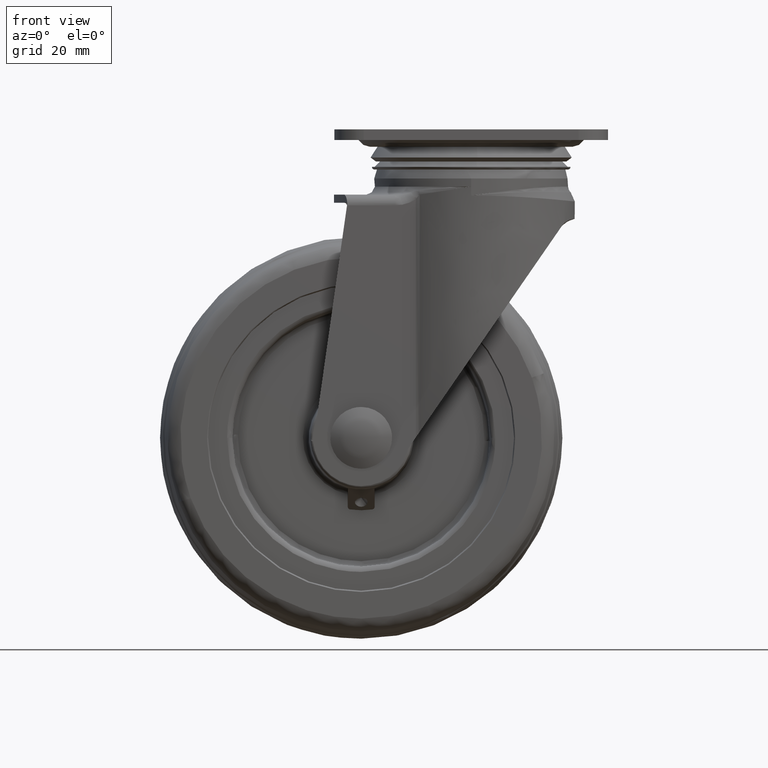
[diagram: clean part render]
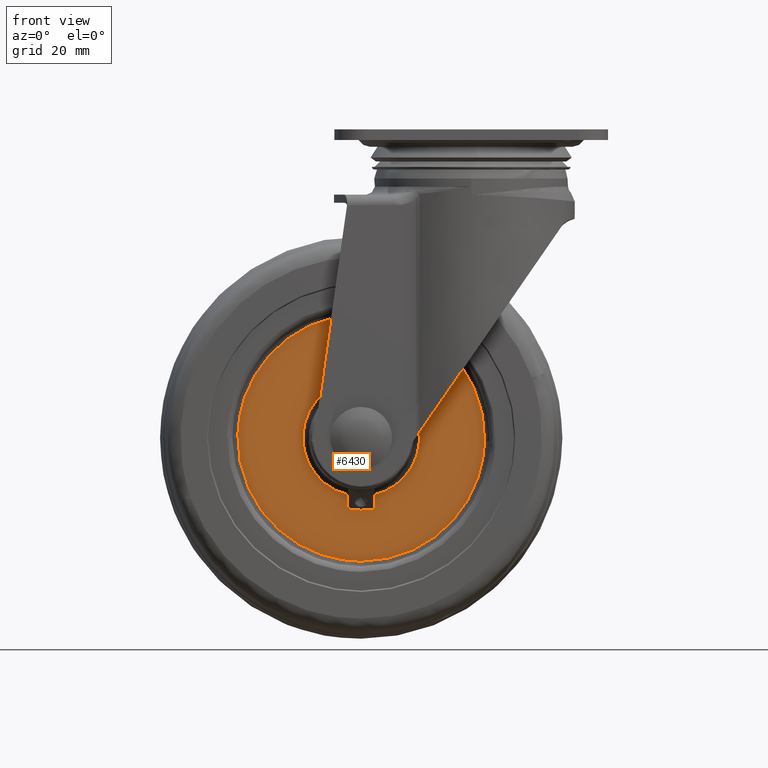
[diagram: same view with one face highlighted and labeled with its STEP entity id]
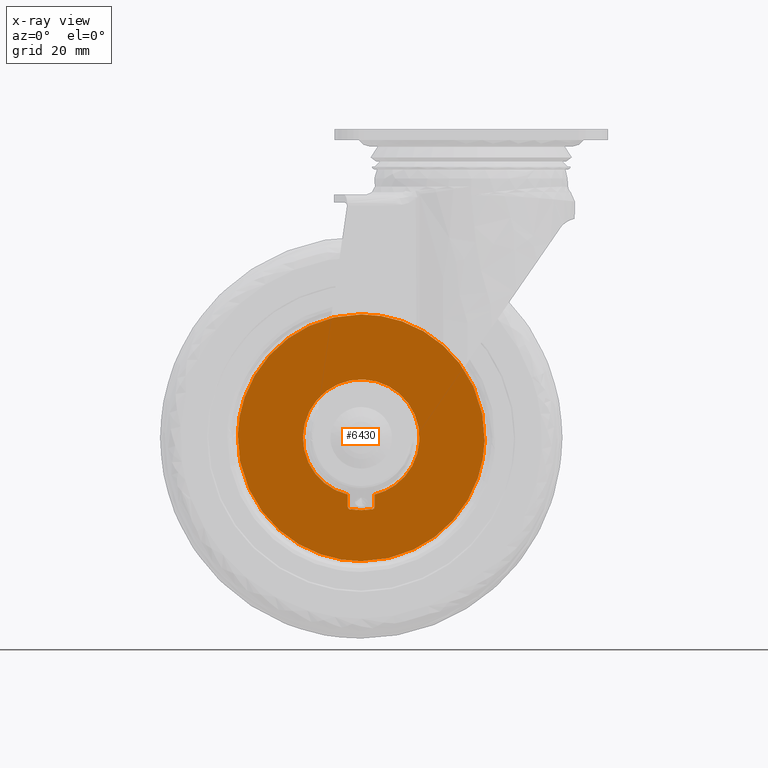
[diagram: x-ray of the same camera — body ghosted, the highlighted face saturated]
A machine part, front view. The second image highlights one B-rep face of the part: STEP entity #6430.
The next image is the same camera in x-ray: the body ghosted, the highlighted face saturated — about 0% of this face is hidden behind the body in this view.
In plain terms, the highlighted face is a freeform B-spline surface patch.
Its self-contained STEP definition (entity closure, byte-faithful):
#5749=CARTESIAN_POINT('',(-86.985488706123704,-12.000000000000240,-113.843999207369390));
#5750=VERTEX_POINT('',#5749);
#5764=CARTESIAN_POINT('',(-41.0,-12.000000000000240,-68.999968000000109));
#5765=VERTEX_POINT('',#5764);
#5766=CARTESIAN_POINT('',(-41.0,-12.000000000000240,-68.999968000000109));
#5767=CARTESIAN_POINT('',(-85.858197909178870,-12.000000000000238,-68.999967999947998));
#5768=CARTESIAN_POINT('',(-86.985488706123704,-12.000000000000243,-113.843999207369480));
#5776=(BOUNDED_CURVE()B_SPLINE_CURVE(2,(#5766,#5767,#5768),.UNSPECIFIED.,.F.,.U.)B_SPLINE_CURVE_WITH_KNOTS((3,3),(0.500000000000000,0.745579891769612),.UNSPECIFIED.)CURVE()GEOMETRIC_REPRESENTATION_ITEM()RATIONAL_B_SPLINE_CURVE((1.0,0.712285260094956,0.989826157681135))REPRESENTATION_ITEM(''));
#5777=EDGE_CURVE('',#5765,#5750,#5776,.T.);
#5779=CARTESIAN_POINT('',(4.985488706123714,-12.000000000000240,-116.155968792630600));
#5780=VERTEX_POINT('',#5779);
#5781=CARTESIAN_POINT('',(4.985488706123714,-12.000000000000240,-116.155968792630520));
#5782=CARTESIAN_POINT('',(5.000016004120768,-12.000000000000238,-115.578067678877250));
#5783=CARTESIAN_POINT('',(5.000016004094715,-12.000000000000240,-114.999984000102900));
#5784=CARTESIAN_POINT('',(5.000016002021577,-12.000000000000243,-68.999968000050927));
#5785=CARTESIAN_POINT('',(-41.0,-12.000000000000240,-68.999968000000109));
#5793=(BOUNDED_CURVE()B_SPLINE_CURVE(2,(#5781,#5782,#5783,#5784,#5785),.UNSPECIFIED.,.F.,.U.)B_SPLINE_CURVE_WITH_KNOTS((3,2,3),(0.245579891769612,0.250000000000000,0.500000000000000),.UNSPECIFIED.)CURVE()GEOMETRIC_REPRESENTATION_ITEM()RATIONAL_B_SPLINE_CURVE((0.989826157681135,0.994821521091592,1.0,0.707106781186547,1.0))REPRESENTATION_ITEM(''));
#5794=EDGE_CURVE('',#5780,#5765,#5793,.T.);
#5844=CARTESIAN_POINT('',(-41.0,-12.000000000000240,-160.999999999999890));
#5845=VERTEX_POINT('',#5844);
#5846=CARTESIAN_POINT('',(-41.0,-12.000000000000240,-160.999999999999890));
#5847=CARTESIAN_POINT('',(3.858197909178883,-12.000000000000245,-161.000000000052010));
#5848=CARTESIAN_POINT('',(4.985488706123714,-12.000000000000240,-116.155968792630520));
#5856=(BOUNDED_CURVE()B_SPLINE_CURVE(2,(#5846,#5847,#5848),.UNSPECIFIED.,.F.,.U.)B_SPLINE_CURVE_WITH_KNOTS((3,3),(0.0,0.245579891769612),.UNSPECIFIED.)CURVE()GEOMETRIC_REPRESENTATION_ITEM()RATIONAL_B_SPLINE_CURVE((1.0,0.712285260094956,0.989826157681135))REPRESENTATION_ITEM(''));
#5857=EDGE_CURVE('',#5845,#5780,#5856,.T.);
#5859=CARTESIAN_POINT('',(-86.985488706123704,-12.000000000000243,-113.843999207369480));
#5860=CARTESIAN_POINT('',(-87.000016004120766,-12.000000000000240,-114.421900321122720));
#5861=CARTESIAN_POINT('',(-87.000016004094704,-12.000000000000240,-114.999983999897000));
#5862=CARTESIAN_POINT('',(-87.000016002021582,-12.000000000000242,-160.999999999949010));
#5863=CARTESIAN_POINT('',(-41.0,-12.000000000000240,-160.999999999999890));
#5871=(BOUNDED_CURVE()B_SPLINE_CURVE(2,(#5859,#5860,#5861,#5862,#5863),.UNSPECIFIED.,.F.,.U.)B_SPLINE_CURVE_WITH_KNOTS((3,2,3),(0.745579891769612,0.750000000000000,1.0),.UNSPECIFIED.)CURVE()GEOMETRIC_REPRESENTATION_ITEM()RATIONAL_B_SPLINE_CURVE((0.989826157681135,0.994821521091592,1.0,0.707106781186547,1.0))REPRESENTATION_ITEM(''));
#5872=EDGE_CURVE('',#5750,#5845,#5871,.T.);
#6106=CARTESIAN_POINT('',(-36.0,-12.000000000000240,-136.154629780269400));
#6107=VERTEX_POINT('',#6106);
#6137=CARTESIAN_POINT('',(-46.0,-12.000000000000240,-136.154629780269400));
#6138=VERTEX_POINT('',#6137);
#6139=CARTESIAN_POINT('',(-46.0,-12.000000000000240,-136.154629780269400));
#6140=CARTESIAN_POINT('',(-47.202125760973701,-12.000000000000250,-135.870601341032990));
#6141=CARTESIAN_POINT('',(-49.479248647497208,-12.000000000000240,-135.122580236216610));
#6142=CARTESIAN_POINT('',(-52.187417075335482,-12.000000000000259,-133.705331124205090));
#6143=CARTESIAN_POINT('',(-54.624762178014592,-12.000000000000240,-132.012170754350310));
#6144=CARTESIAN_POINT('',(-56.467980776271602,-12.000000000000250,-130.355450502530090));
#6145=CARTESIAN_POINT('',(-58.410559946773020,-12.000000000000210,-128.111834211196590));
#6146=CARTESIAN_POINT('',(-59.969991040011479,-12.000000000000281,-125.775715329612890));
#6147=CARTESIAN_POINT('',(-61.378851715114521,-12.000000000000190,-122.789677225892310));
#6148=CARTESIAN_POINT('',(-62.381411713693950,-12.000000000000350,-119.467982712908910));
#6149=CARTESIAN_POINT('',(-62.826393049902499,-12.000000000000060,-115.856881930432000));
#6150=CARTESIAN_POINT('',(-62.636745729708807,-12.000000000000551,-111.896090126181310));
#6151=CARTESIAN_POINT('',(-61.656928914963061,-12.000000000000099,-107.704426256154510));
#6152=CARTESIAN_POINT('',(-59.727629400346750,-12.000000000000201,-103.665858162960600));
#6153=CARTESIAN_POINT('',(-57.374708657168142,-12.000000000000350,-100.572484697228900));
#6154=CARTESIAN_POINT('',(-54.998676957297462,-12.000000000000520,-98.281685976093669));
#6155=CARTESIAN_POINT('',(-52.531300628703377,-11.999999999999810,-96.479742449938811));
#6156=CARTESIAN_POINT('',(-49.386771803473920,-12.000000000001570,-94.830476491796858));
#6157=CARTESIAN_POINT('',(-45.844057888578341,-11.999999999997559,-93.685657534258397));
#6158=CARTESIAN_POINT('',(-41.828758570453047,-12.000000000003199,-93.157941574514510));
#6159=CARTESIAN_POINT('',(-37.449520287868317,-11.999999999998870,-93.381832949706933));
#6160=CARTESIAN_POINT('',(-33.369638709288161,-12.000000000000600,-94.498036019540521));
#6161=CARTESIAN_POINT('',(-30.188581996419781,-12.000000000000220,-96.075813242543632));
#6162=CARTESIAN_POINT('',(-27.714153256199609,-12.000000000000220,-97.715714032948227));
#6163=CARTESIAN_POINT('',(-25.595120097992840,-12.000000000000250,-99.559329577666773));
#6164=CARTESIAN_POINT('',(-23.328944761679001,-12.000000000000471,-102.181258435228700));
#6165=CARTESIAN_POINT('',(-21.719493941311129,-11.999999999999870,-104.785214965103510));
#6166=CARTESIAN_POINT('',(-20.417370575378211,-11.999999999999661,-107.815674177508800));
#6167=CARTESIAN_POINT('',(-19.586819883713879,-12.000000000000810,-110.757260059368210));
#6168=CARTESIAN_POINT('',(-19.185093035435131,-11.999999999999840,-114.203551153458600));
#6169=CARTESIAN_POINT('',(-19.316744194564059,-12.000000000000410,-117.257299656664100));
#6170=CARTESIAN_POINT('',(-19.844211091612610,-12.000000000000220,-120.262313410815810));
#6171=CARTESIAN_POINT('',(-20.834689181591131,-12.000000000000240,-123.414887653581500));
#6172=CARTESIAN_POINT('',(-22.288288902861460,-12.000000000000240,-126.202627591659290));
#6173=CARTESIAN_POINT('',(-24.195754156282721,-12.000000000000240,-128.891437028882110));
#6174=CARTESIAN_POINT('',(-26.276153456086739,-12.000000000000250,-131.134887960638200));
#6175=CARTESIAN_POINT('',(-29.361037036333080,-12.000000000000250,-133.492771671832710));
#6176=CARTESIAN_POINT('',(-32.595938419445687,-12.000000000000229,-135.162297635062400));
#6177=CARTESIAN_POINT('',(-34.958173388849879,-12.000000000000250,-135.908419225899000));
#6178=CARTESIAN_POINT('',(-36.0,-12.000000000000240,-136.154629780269400));
#6179=B_SPLINE_CURVE_WITH_KNOTS('',3,(#6139,#6140,#6141,#6142,#6143,#6144,#6145,#6146,#6147,#6148,#6149,#6150,#6151,#6152,#6153,#6154,#6155,#6156,#6157,#6158,#6159,#6160,#6161,#6162,#6163,#6164,#6165,#6166,#6167,#6168,#6169,#6170,#6171,#6172,#6173,#6174,#6175,#6176,#6177,#6178),.UNSPECIFIED.,.F.,.U.,(4,1,1,1,1,1,1,1,1,1,1,1,1,1,1,1,1,1,1,1,1,1,1,1,1,1,1,1,1,1,1,1,1,1,1,1,1,4),(0.000000082729670,3.705675387364664,7.164486276311024,9.140903089528564,12.599675870977860,14.576118206916250,18.034887634750291,20.999518665823022,24.458277738935649,28.411117108504119,31.869827147295581,36.316687217483050,41.257773966317799,45.210666902201737,47.928273951171903,51.139959869828701,54.351703919424473,58.551646774438247,62.257347256559342,66.457153369033321,71.645280418795267,74.857028678164696,77.080505469118123,80.539265284186115,83.256839418457588,87.456808950071689,89.680303150796561,93.138971416453700,96.597668990162219,100.056337252241090,102.279831454360600,105.738603185998200,109.938540383467400,111.667928756640190,115.620809526141800,119.079581258341410,123.279487036302600,126.491092510498400),.UNSPECIFIED.);
#6180=EDGE_CURVE('',#6138,#6107,#6179,.T.);
#6260=CARTESIAN_POINT('',(-36.846161342044951,-12.000000000000220,-141.678561138181210));
#6261=VERTEX_POINT('',#6260);
#6267=CARTESIAN_POINT('',(-36.0,-12.000000000000220,-140.690464999999990));
#6268=VERTEX_POINT('',#6267);
#6269=CARTESIAN_POINT('',(-36.846161342044951,-12.000000000000220,-141.678561138181210));
#6270=CARTESIAN_POINT('',(-36.0,-12.000000000000218,-141.546820434287500));
#6271=CARTESIAN_POINT('',(-36.0,-12.000000000000220,-140.690464999999990));
#6279=(BOUNDED_CURVE()B_SPLINE_CURVE(2,(#6269,#6270,#6271),.UNSPECIFIED.,.F.,.U.)CURVE()GEOMETRIC_REPRESENTATION_ITEM()QUASI_UNIFORM_CURVE()RATIONAL_B_SPLINE_CURVE((1.0,0.759552050236008,1.0))REPRESENTATION_ITEM(''));
#6280=EDGE_CURVE('',#6261,#6268,#6279,.T.);
#6318=CARTESIAN_POINT('',(-45.153846790232599,-12.000000000000220,-141.678559714658010));
#6319=VERTEX_POINT('',#6318);
#6325=CARTESIAN_POINT('',(-45.153846790232599,-12.000000000000220,-141.678559714658010));
#6326=CARTESIAN_POINT('',(-41.000004176959820,-12.000000000000220,-142.325312395018950));
#6327=CARTESIAN_POINT('',(-36.846161342044937,-12.000000000000220,-141.678561138181290));
#6335=(BOUNDED_CURVE()B_SPLINE_CURVE(2,(#6325,#6326,#6327),.UNSPECIFIED.,.F.,.U.)CURVE()GEOMETRIC_REPRESENTATION_ITEM()QUASI_UNIFORM_CURVE()RATIONAL_B_SPLINE_CURVE((1.0,0.988094833452715,1.0))REPRESENTATION_ITEM(''));
#6336=EDGE_CURVE('',#6319,#6261,#6335,.T.);
#6379=CARTESIAN_POINT('',(-46.0,-12.000000000000220,-140.690464668387390));
#6380=VERTEX_POINT('',#6379);
#6386=CARTESIAN_POINT('',(-45.999999999999943,-12.000000000000220,-140.690464668387390));
#6387=CARTESIAN_POINT('',(-46.000000283975901,-12.000000000000217,-141.546813236182400));
#6388=CARTESIAN_POINT('',(-45.153846790232599,-12.000000000000220,-141.678559714658010));
#6396=(BOUNDED_CURVE()B_SPLINE_CURVE(2,(#6386,#6387,#6388),.UNSPECIFIED.,.F.,.U.)CURVE()GEOMETRIC_REPRESENTATION_ITEM()QUASI_UNIFORM_CURVE()RATIONAL_B_SPLINE_CURVE((1.0,0.759554626925531,1.0))REPRESENTATION_ITEM(''));
#6397=EDGE_CURVE('',#6380,#6319,#6396,.T.);
#6403=CARTESIAN_POINT('',(-91.595363204636854,-12.000000000000240,-165.595401420086010));
#6404=CARTESIAN_POINT('',(-91.595363204636854,-12.000000000000240,-64.404564112280880));
#6405=CARTESIAN_POINT('',(9.595366493775298,-12.000000000000240,-165.595401420086010));
#6406=CARTESIAN_POINT('',(9.595366493775298,-12.000000000000240,-64.404564112280880));
#6407=B_SPLINE_SURFACE_WITH_KNOTS('',1,1,((#6403,#6405),(#6404,#6406)),.UNSPECIFIED.,.F.,.F.,.U.,(2,2),(2,2),(0.0,101.190837307805100),(0.0,101.190729698412200),.UNSPECIFIED.);
#6408=ORIENTED_EDGE('',*,*,#5857,.T.);
#6409=ORIENTED_EDGE('',*,*,#5794,.T.);
#6410=ORIENTED_EDGE('',*,*,#5777,.T.);
#6411=ORIENTED_EDGE('',*,*,#5872,.T.);
#6412=EDGE_LOOP('',(#6408,#6409,#6410,#6411));
#6413=FACE_OUTER_BOUND('',#6412,.T.);
#6414=CARTESIAN_POINT('',(-46.0,-12.000000000000240,-136.154629780269400));
#6415=CARTESIAN_POINT('',(-46.0,-12.000000000000220,-140.690464668387390));
#6416=QUASI_UNIFORM_CURVE('',1,(#6414,#6415),.UNSPECIFIED.,.F.,.U.);
#6417=EDGE_CURVE('',#6138,#6380,#6416,.T.);
#6418=ORIENTED_EDGE('',*,*,#6417,.F.);
#6419=ORIENTED_EDGE('',*,*,#6180,.T.);
#6420=CARTESIAN_POINT('',(-36.0,-12.000000000000220,-140.690464999999990));
#6421=CARTESIAN_POINT('',(-36.0,-12.000000000000240,-136.154629780269400));
#6422=QUASI_UNIFORM_CURVE('',1,(#6420,#6421),.UNSPECIFIED.,.F.,.U.);
#6423=EDGE_CURVE('',#6268,#6107,#6422,.T.);
#6424=ORIENTED_EDGE('',*,*,#6423,.F.);
#6425=ORIENTED_EDGE('',*,*,#6280,.F.);
#6426=ORIENTED_EDGE('',*,*,#6336,.F.);
#6427=ORIENTED_EDGE('',*,*,#6397,.F.);
#6428=EDGE_LOOP('',(#6418,#6419,#6424,#6425,#6426,#6427));
#6429=FACE_BOUND('',#6428,.T.);
#6430=ADVANCED_FACE('',(#6413,#6429),#6407,.F.);